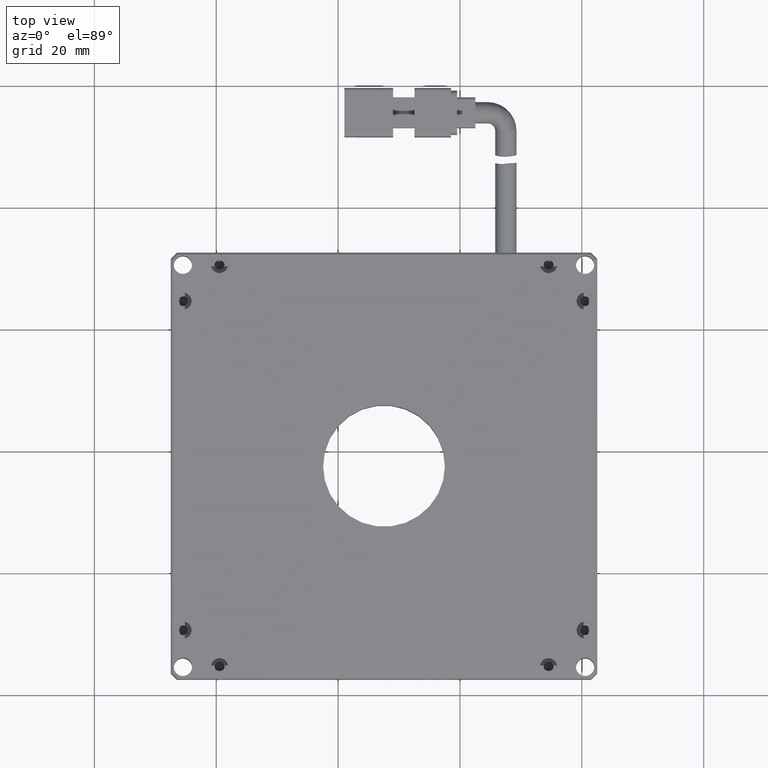
[diagram: clean part render]
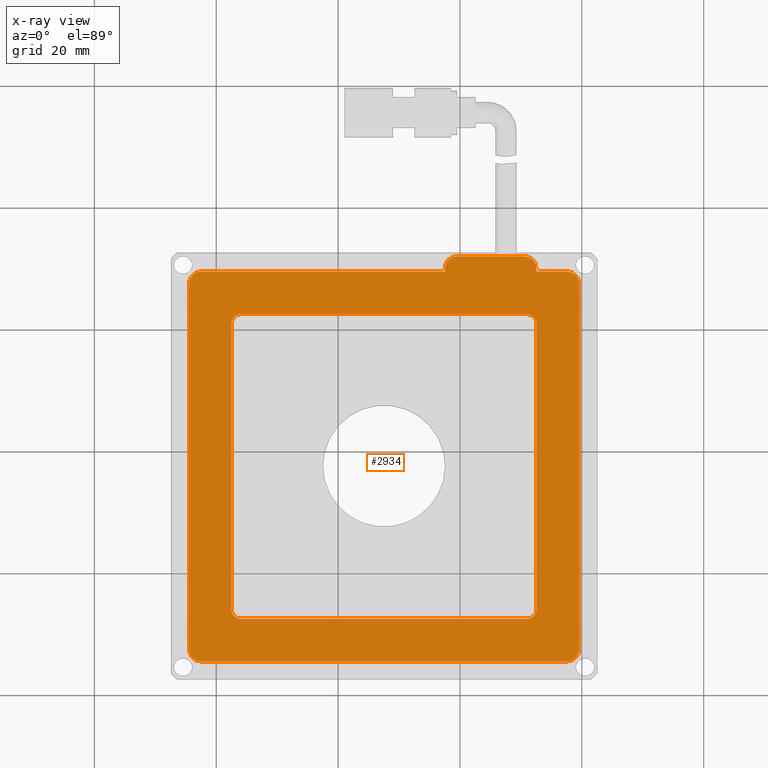
[diagram: x-ray — body ghosted, one internal face saturated and labeled with its STEP entity id]
A machine part, top view, then the same camera in x-ray: the body is ghosted and one INTERNAL B-rep face — a face not visible from any outside direction — is saturated and labeled: STEP entity #2934.
In plain terms, the highlighted planar face has unit normal (0, 0, 1).
Its self-contained STEP definition (entity closure, byte-faithful):
#94 = DIRECTION ( 'NONE',  ( 1.000000000000000000, 0.0000000000000000000, -0.0000000000000000000 ) ) ;
#236 = VERTEX_POINT ( 'NONE', #7975 ) ;
#290 = LINE ( 'NONE', #12614, #7777 ) ;
#436 = VERTEX_POINT ( 'NONE', #13071 ) ;
#672 = DIRECTION ( 'NONE',  ( -0.0000000000000000000, -0.0000000000000000000, -1.000000000000000000 ) ) ;
#743 = EDGE_CURVE ( 'NONE', #4486, #5287, #19446, .T. ) ;
#750 = PLANE ( 'NONE',  #3803 ) ;
#766 = CARTESIAN_POINT ( 'NONE',  ( -35.96630710659898300, 14.03591370558376300, -2.000000000000000000 ) ) ;
#777 = CARTESIAN_POINT ( 'NONE',  ( 17.53369289340102500, 7.535913705583761900, -2.000000000000000000 ) ) ;
#797 = CARTESIAN_POINT ( 'NONE',  ( -42.46630710659897500, 7.535913705583761900, -2.000000000000000000 ) ) ;
#849 = DIRECTION ( 'NONE',  ( -0.0000000000000000000, -0.0000000000000000000, 1.000000000000000000 ) ) ;
#1077 = DIRECTION ( 'NONE',  ( 1.000000000000000000, 0.0000000000000000000, 0.0000000000000000000 ) ) ;
#1221 = CARTESIAN_POINT ( 'NONE',  ( -0.4663071065989718400, 70.03591370558376600, -1.999999999999999100 ) ) ;
#1409 = LINE ( 'NONE', #21212, #2970 ) ;
#1504 = CARTESIAN_POINT ( 'NONE',  ( -42.46630710659897500, 69.53591370558376600, -2.000000000000000000 ) ) ;
#1515 = CARTESIAN_POINT ( 'NONE',  ( 12.53369289340104100, 69.53591370558376600, -2.000000000000000000 ) ) ;
#1789 = VERTEX_POINT ( 'NONE', #16913 ) ;
#1806 = VERTEX_POINT ( 'NONE', #7234 ) ;
#2292 = CARTESIAN_POINT ( 'NONE',  ( -42.46630710659897500, 7.535913705583761900, -2.000000000000000000 ) ) ;
#2499 = CARTESIAN_POINT ( 'NONE',  ( 11.03369289340102500, 14.03591370558375900, -2.000000000000000000 ) ) ;
#2668 = LINE ( 'NONE', #14921, #15247 ) ;
#2863 = ORIENTED_EDGE ( 'NONE', *, *, #7568, .T. ) ;
#2898 = EDGE_CURVE ( 'NONE', #10318, #3485, #21330, .T. ) ;
#2934 = ADVANCED_FACE ( 'NONE', ( #8702, #4366 ), #750, .T. ) ;
#2960 = DIRECTION ( 'NONE',  ( 0.0000000000000000000, -1.000000000000000000, -0.0000000000000000000 ) ) ;
#2970 = VECTOR ( 'NONE', #11047, 1000.000000000000000 ) ;
#3086 = AXIS2_PLACEMENT_3D ( 'NONE', #14067, #12430, #7483 ) ;
#3180 = DIRECTION ( 'NONE',  ( -1.000000000000000000, -0.0000000000000000000, 0.0000000000000000000 ) ) ;
#3313 = ORIENTED_EDGE ( 'NONE', *, *, #12957, .T. ) ;
#3351 = CARTESIAN_POINT ( 'NONE',  ( 11.03369289340102500, 62.53591370558377300, -2.000000000000000000 ) ) ;
#3365 = VERTEX_POINT ( 'NONE', #8318 ) ;
#3456 = CARTESIAN_POINT ( 'NONE',  ( 17.53369289340102500, 67.53591370558376600, -2.000000000000000000 ) ) ;
#3485 = VERTEX_POINT ( 'NONE', #12353 ) ;
#3548 = CARTESIAN_POINT ( 'NONE',  ( -42.46630710659897500, 69.53591370558376600, -2.000000000000000000 ) ) ;
#3621 = CARTESIAN_POINT ( 'NONE',  ( -37.46630710659897500, 61.03591370558376600, -2.000000000000000000 ) ) ;
#3678 = CIRCLE ( 'NONE', #13950, 1.500000000000001300 ) ;
#3803 = AXIS2_PLACEMENT_3D ( 'NONE', #2292, #13905, #4020 ) ;
#3881 = ORIENTED_EDGE ( 'NONE', *, *, #20209, .T. ) ;
#4020 = DIRECTION ( 'NONE',  ( 1.000000000000000000, 0.0000000000000000000, -0.0000000000000000000 ) ) ;
#4156 = EDGE_LOOP ( 'NONE', ( #13967, #13308, #18645, #15589, #20482, #18750, #3313, #7202, #3881, #9167, #20650, #17740, #19247, #19757 ) ) ;
#4366 = FACE_OUTER_BOUND ( 'NONE', #4156, .T. ) ;
#4411 = EDGE_CURVE ( 'NONE', #10215, #3485, #17344, .T. ) ;
#4451 = EDGE_CURVE ( 'NONE', #9524, #17937, #1409, .T. ) ;
#4452 = VERTEX_POINT ( 'NONE', #19482 ) ;
#4454 = CARTESIAN_POINT ( 'NONE',  ( -42.46630710659897500, 69.53591370558376600, -2.000000000000000000 ) ) ;
#4486 = VERTEX_POINT ( 'NONE', #1515 ) ;
#4565 = ORIENTED_EDGE ( 'NONE', *, *, #12120, .T. ) ;
#4579 = VECTOR ( 'NONE', #12523, 1000.000000000000000 ) ;
#4675 = VECTOR ( 'NONE', #94, 1000.000000000000000 ) ;
#4697 = AXIS2_PLACEMENT_3D ( 'NONE', #797, #18998, #1077 ) ;
#5005 = DIRECTION ( 'NONE',  ( -0.0000000000000000000, 1.000000000000000000, 0.0000000000000000000 ) ) ;
#5123 = EDGE_CURVE ( 'NONE', #436, #11131, #9011, .T. ) ;
#5219 = CARTESIAN_POINT ( 'NONE',  ( 19.53369289340102500, 7.535913705583761900, -2.000000000000000000 ) ) ;
#5287 = VERTEX_POINT ( 'NONE', #10505 ) ;
#5352 = VECTOR ( 'NONE', #9266, 1000.000000000000000 ) ;
#5459 = ORIENTED_EDGE ( 'NONE', *, *, #4411, .F. ) ;
#5565 = CARTESIAN_POINT ( 'NONE',  ( -37.46630710659897500, 62.53591370558378800, -2.000000000000000000 ) ) ;
#5807 = AXIS2_PLACEMENT_3D ( 'NONE', #2499, #672, #7459 ) ;
#5888 = ORIENTED_EDGE ( 'NONE', *, *, #13893, .T. ) ;
#6209 = DIRECTION ( 'NONE',  ( -0.0000000000000000000, -0.0000000000000000000, 1.000000000000000000 ) ) ;
#6309 = CIRCLE ( 'NONE', #13631, 2.000000000000001800 ) ;
#6347 = CIRCLE ( 'NONE', #16223, 2.000000000000001800 ) ;
#6446 = VERTEX_POINT ( 'NONE', #12514 ) ;
#6788 = EDGE_CURVE ( 'NONE', #11131, #13066, #6347, .T. ) ;
#6904 = CARTESIAN_POINT ( 'NONE',  ( -35.96630710659897500, 61.03591370558376600, -2.000000000000000000 ) ) ;
#7202 = ORIENTED_EDGE ( 'NONE', *, *, #9656, .T. ) ;
#7234 = CARTESIAN_POINT ( 'NONE',  ( 17.53369289340102500, 69.53591370558376600, -2.000000000000000000 ) ) ;
#7414 = DIRECTION ( 'NONE',  ( 1.000000000000000000, 0.0000000000000000000, 0.0000000000000000000 ) ) ;
#7459 = DIRECTION ( 'NONE',  ( 1.000000000000000000, 0.0000000000000000000, 0.0000000000000000000 ) ) ;
#7483 = DIRECTION ( 'NONE',  ( 1.000000000000000000, 0.0000000000000000000, 0.0000000000000000000 ) ) ;
#7568 = EDGE_CURVE ( 'NONE', #20525, #15568, #11671, .T. ) ;
#7700 = CARTESIAN_POINT ( 'NONE',  ( -37.46630710659898300, 14.03591370558376300, -2.000000000000000000 ) ) ;
#7777 = VECTOR ( 'NONE', #9303, 1000.000000000000000 ) ;
#7894 = CARTESIAN_POINT ( 'NONE',  ( -2.466307106598973700, 70.03591370558376600, -1.999999999999999100 ) ) ;
#7975 = CARTESIAN_POINT ( 'NONE',  ( 19.53369289340102500, 67.53591370558376600, -2.000000000000000000 ) ) ;
#7977 = CARTESIAN_POINT ( 'NONE',  ( 10.53369289340102500, 70.03591370558376600, -1.999999999999999100 ) ) ;
#8318 = CARTESIAN_POINT ( 'NONE',  ( 12.53369289340103300, 61.03591370558375900, -2.000000000000000000 ) ) ;
#8642 = EDGE_CURVE ( 'NONE', #10318, #15235, #14131, .T. ) ;
#8702 = FACE_BOUND ( 'NONE', #18404, .T. ) ;
#8959 = ORIENTED_EDGE ( 'NONE', *, *, #18836, .F. ) ;
#9011 = LINE ( 'NONE', #16714, #4675 ) ;
#9167 = ORIENTED_EDGE ( 'NONE', *, *, #12204, .T. ) ;
#9177 = DIRECTION ( 'NONE',  ( 1.000000000000000000, 0.0000000000000000000, 0.0000000000000000000 ) ) ;
#9266 = DIRECTION ( 'NONE',  ( -0.0000000000000000000, -1.000000000000000000, 0.0000000000000000000 ) ) ;
#9303 = DIRECTION ( 'NONE',  ( 1.387778780781445700E-016, 1.000000000000000000, -0.0000000000000000000 ) ) ;
#9320 = DIRECTION ( 'NONE',  ( -0.0000000000000000000, -0.0000000000000000000, 1.000000000000000000 ) ) ;
#9524 = VERTEX_POINT ( 'NONE', #12972 ) ;
#9656 = EDGE_CURVE ( 'NONE', #12241, #6446, #9677, .T. ) ;
#9677 = LINE ( 'NONE', #12719, #5352 ) ;
#9826 = DIRECTION ( 'NONE',  ( 1.000000000000000000, 0.0000000000000000000, 0.0000000000000000000 ) ) ;
#9844 = CARTESIAN_POINT ( 'NONE',  ( 11.03369289340102500, 12.53591370558375800, -2.000000000000000000 ) ) ;
#10041 = DIRECTION ( 'NONE',  ( -0.0000000000000000000, -0.0000000000000000000, 1.000000000000000000 ) ) ;
#10215 = VERTEX_POINT ( 'NONE', #3351 ) ;
#10318 = VERTEX_POINT ( 'NONE', #3621 ) ;
#10505 = CARTESIAN_POINT ( 'NONE',  ( 12.53369289340103300, 70.03591370558376600, -1.999999999999999100 ) ) ;
#11047 = DIRECTION ( 'NONE',  ( -1.000000000000000000, -0.0000000000000000000, 0.0000000000000000000 ) ) ;
#11131 = VERTEX_POINT ( 'NONE', #18875 ) ;
#11671 = CIRCLE ( 'NONE', #5807, 1.500000000000001300 ) ;
#11832 = CIRCLE ( 'NONE', #4697, 2.000000000000001800 ) ;
#11937 = VECTOR ( 'NONE', #21168, 1000.000000000000000 ) ;
#11997 = CIRCLE ( 'NONE', #17509, 2.000000000000001800 ) ;
#12053 = ORIENTED_EDGE ( 'NONE', *, *, #8642, .F. ) ;
#12057 = LINE ( 'NONE', #5219, #20789 ) ;
#12120 = EDGE_CURVE ( 'NONE', #10215, #3365, #19229, .T. ) ;
#12204 = EDGE_CURVE ( 'NONE', #15462, #4452, #18208, .T. ) ;
#12241 = VERTEX_POINT ( 'NONE', #7894 ) ;
#12274 = DIRECTION ( 'NONE',  ( -0.0000000000000000000, -0.0000000000000000000, -1.000000000000000000 ) ) ;
#12353 = CARTESIAN_POINT ( 'NONE',  ( -35.96630710659897500, 62.53591370558377300, -2.000000000000000000 ) ) ;
#12399 = EDGE_CURVE ( 'NONE', #236, #1806, #11997, .T. ) ;
#12407 = VECTOR ( 'NONE', #2960, 1000.000000000000000 ) ;
#12430 = DIRECTION ( 'NONE',  ( -0.0000000000000000000, -0.0000000000000000000, -1.000000000000000000 ) ) ;
#12514 = CARTESIAN_POINT ( 'NONE',  ( -2.466307106598973700, 69.53591370558376600, -2.000000000000000000 ) ) ;
#12523 = DIRECTION ( 'NONE',  ( -1.000000000000000000, -0.0000000000000000000, 0.0000000000000000000 ) ) ;
#12614 = CARTESIAN_POINT ( 'NONE',  ( 12.53369289340103300, 62.53591370558377300, -2.000000000000000000 ) ) ;
#12719 = CARTESIAN_POINT ( 'NONE',  ( -2.466307106598973700, 70.03591370558376600, -1.999999999999999100 ) ) ;
#12909 = EDGE_CURVE ( 'NONE', #5287, #9524, #6309, .T. ) ;
#12957 = EDGE_CURVE ( 'NONE', #17937, #12241, #21214, .T. ) ;
#12972 = CARTESIAN_POINT ( 'NONE',  ( 10.53369289340102500, 72.03591370558376600, -1.999999999999999100 ) ) ;
#13066 = VERTEX_POINT ( 'NONE', #18190 ) ;
#13071 = CARTESIAN_POINT ( 'NONE',  ( -42.46630710659896800, 5.535913705583761100, -2.000000000000000000 ) ) ;
#13298 = VERTEX_POINT ( 'NONE', #20608 ) ;
#13308 = ORIENTED_EDGE ( 'NONE', *, *, #12399, .T. ) ;
#13399 = DIRECTION ( 'NONE',  ( -0.0000000000000000000, -0.0000000000000000000, -1.000000000000000000 ) ) ;
#13608 = DIRECTION ( 'NONE',  ( -1.734723475976806800E-016, -1.000000000000000000, -0.0000000000000000000 ) ) ;
#13631 = AXIS2_PLACEMENT_3D ( 'NONE', #7977, #6209, #19200 ) ;
#13893 = EDGE_CURVE ( 'NONE', #1789, #15235, #3678, .T. ) ;
#13905 = DIRECTION ( 'NONE',  ( 0.0000000000000000000, 0.0000000000000000000, 1.000000000000000000 ) ) ;
#13950 = AXIS2_PLACEMENT_3D ( 'NONE', #766, #12274, #18961 ) ;
#13967 = ORIENTED_EDGE ( 'NONE', *, *, #19593, .T. ) ;
#14067 = CARTESIAN_POINT ( 'NONE',  ( 11.03369289340102500, 61.03591370558375900, -2.000000000000000000 ) ) ;
#14131 = LINE ( 'NONE', #20084, #20838 ) ;
#14233 = CARTESIAN_POINT ( 'NONE',  ( 12.53369289340103300, 70.03591370558376600, -1.999999999999999100 ) ) ;
#14359 = DIRECTION ( 'NONE',  ( -0.0000000000000000000, -0.0000000000000000000, 1.000000000000000000 ) ) ;
#14648 = DIRECTION ( 'NONE',  ( -1.000000000000000000, 1.387778780781445700E-016, -0.0000000000000000000 ) ) ;
#14692 = EDGE_CURVE ( 'NONE', #1806, #4486, #19217, .T. ) ;
#14921 = CARTESIAN_POINT ( 'NONE',  ( -37.46630710659898300, 12.53591370558376100, -2.000000000000000000 ) ) ;
#15215 = AXIS2_PLACEMENT_3D ( 'NONE', #6904, #13399, #18391 ) ;
#15235 = VERTEX_POINT ( 'NONE', #7700 ) ;
#15247 = VECTOR ( 'NONE', #18110, 1000.000000000000000 ) ;
#15276 = VECTOR ( 'NONE', #14648, 1000.000000000000000 ) ;
#15296 = AXIS2_PLACEMENT_3D ( 'NONE', #19122, #9320, #9177 ) ;
#15462 = VERTEX_POINT ( 'NONE', #3548 ) ;
#15519 = VECTOR ( 'NONE', #3180, 1000.000000000000000 ) ;
#15568 = VERTEX_POINT ( 'NONE', #9844 ) ;
#15589 = ORIENTED_EDGE ( 'NONE', *, *, #743, .T. ) ;
#15884 = CARTESIAN_POINT ( 'NONE',  ( -44.46630710659898300, 7.535913705583761900, -2.000000000000000000 ) ) ;
#15946 = EDGE_CURVE ( 'NONE', #1789, #15568, #2668, .T. ) ;
#16223 = AXIS2_PLACEMENT_3D ( 'NONE', #777, #849, #7414 ) ;
#16714 = CARTESIAN_POINT ( 'NONE',  ( -42.46630710659897500, 5.535913705583761100, -2.000000000000000000 ) ) ;
#16783 = EDGE_CURVE ( 'NONE', #13298, #436, #11832, .T. ) ;
#16913 = CARTESIAN_POINT ( 'NONE',  ( -35.96630710659898300, 12.53591370558376100, -2.000000000000000000 ) ) ;
#17344 = LINE ( 'NONE', #5565, #15276 ) ;
#17509 = AXIS2_PLACEMENT_3D ( 'NONE', #3456, #10041, #9826 ) ;
#17740 = ORIENTED_EDGE ( 'NONE', *, *, #16783, .T. ) ;
#17937 = VERTEX_POINT ( 'NONE', #21153 ) ;
#18077 = LINE ( 'NONE', #15884, #12407 ) ;
#18110 = DIRECTION ( 'NONE',  ( 1.000000000000000000, -3.469446951953614200E-017, -0.0000000000000000000 ) ) ;
#18190 = CARTESIAN_POINT ( 'NONE',  ( 19.53369289340102500, 7.535913705583769100, -2.000000000000000000 ) ) ;
#18208 = CIRCLE ( 'NONE', #15296, 2.000000000000001800 ) ;
#18307 = ORIENTED_EDGE ( 'NONE', *, *, #15946, .F. ) ;
#18341 = EDGE_CURVE ( 'NONE', #4452, #13298, #18077, .T. ) ;
#18391 = DIRECTION ( 'NONE',  ( 1.000000000000000000, 0.0000000000000000000, 0.0000000000000000000 ) ) ;
#18404 = EDGE_LOOP ( 'NONE', ( #12053, #19448, #5459, #4565, #8959, #2863, #18307, #5888 ) ) ;
#18461 = CARTESIAN_POINT ( 'NONE',  ( 12.53369289340102600, 14.03591370558375900, -2.000000000000000000 ) ) ;
#18645 = ORIENTED_EDGE ( 'NONE', *, *, #14692, .T. ) ;
#18750 = ORIENTED_EDGE ( 'NONE', *, *, #4451, .T. ) ;
#18836 = EDGE_CURVE ( 'NONE', #20525, #3365, #290, .T. ) ;
#18875 = CARTESIAN_POINT ( 'NONE',  ( 17.53369289340102500, 5.535913705583761100, -2.000000000000000000 ) ) ;
#18961 = DIRECTION ( 'NONE',  ( 1.000000000000000000, 0.0000000000000000000, 0.0000000000000000000 ) ) ;
#18998 = DIRECTION ( 'NONE',  ( -0.0000000000000000000, -0.0000000000000000000, 1.000000000000000000 ) ) ;
#19122 = CARTESIAN_POINT ( 'NONE',  ( -42.46630710659898300, 67.53591370558376600, -2.000000000000000000 ) ) ;
#19200 = DIRECTION ( 'NONE',  ( 1.000000000000000000, 0.0000000000000000000, 0.0000000000000000000 ) ) ;
#19217 = LINE ( 'NONE', #4454, #4579 ) ;
#19229 = CIRCLE ( 'NONE', #3086, 1.500000000000001300 ) ;
#19247 = ORIENTED_EDGE ( 'NONE', *, *, #5123, .T. ) ;
#19345 = DIRECTION ( 'NONE',  ( 1.000000000000000000, 0.0000000000000000000, 0.0000000000000000000 ) ) ;
#19446 = LINE ( 'NONE', #14233, #11937 ) ;
#19448 = ORIENTED_EDGE ( 'NONE', *, *, #2898, .T. ) ;
#19482 = CARTESIAN_POINT ( 'NONE',  ( -44.46630710659898300, 67.53591370558376600, -2.000000000000000000 ) ) ;
#19593 = EDGE_CURVE ( 'NONE', #13066, #236, #12057, .T. ) ;
#19757 = ORIENTED_EDGE ( 'NONE', *, *, #6788, .T. ) ;
#20084 = CARTESIAN_POINT ( 'NONE',  ( -37.46630710659897500, 62.53591370558378800, -2.000000000000000000 ) ) ;
#20209 = EDGE_CURVE ( 'NONE', #6446, #15462, #20652, .T. ) ;
#20482 = ORIENTED_EDGE ( 'NONE', *, *, #12909, .T. ) ;
#20525 = VERTEX_POINT ( 'NONE', #18461 ) ;
#20608 = CARTESIAN_POINT ( 'NONE',  ( -44.46630710659897500, 7.535913705583768200, -2.000000000000000000 ) ) ;
#20650 = ORIENTED_EDGE ( 'NONE', *, *, #18341, .T. ) ;
#20652 = LINE ( 'NONE', #1504, #15519 ) ;
#20789 = VECTOR ( 'NONE', #5005, 1000.000000000000000 ) ;
#20838 = VECTOR ( 'NONE', #13608, 1000.000000000000000 ) ;
#21153 = CARTESIAN_POINT ( 'NONE',  ( -0.4663071065989718400, 72.03591370558376600, -1.999999999999999100 ) ) ;
#21168 = DIRECTION ( 'NONE',  ( -0.0000000000000000000, 1.000000000000000000, 0.0000000000000000000 ) ) ;
#21212 = CARTESIAN_POINT ( 'NONE',  ( -42.46630710659897500, 72.03591370558376600, -2.000000000000000000 ) ) ;
#21214 = CIRCLE ( 'NONE', #21389, 2.000000000000001800 ) ;
#21330 = CIRCLE ( 'NONE', #15215, 1.500000000000001300 ) ;
#21389 = AXIS2_PLACEMENT_3D ( 'NONE', #1221, #14359, #19345 ) ;